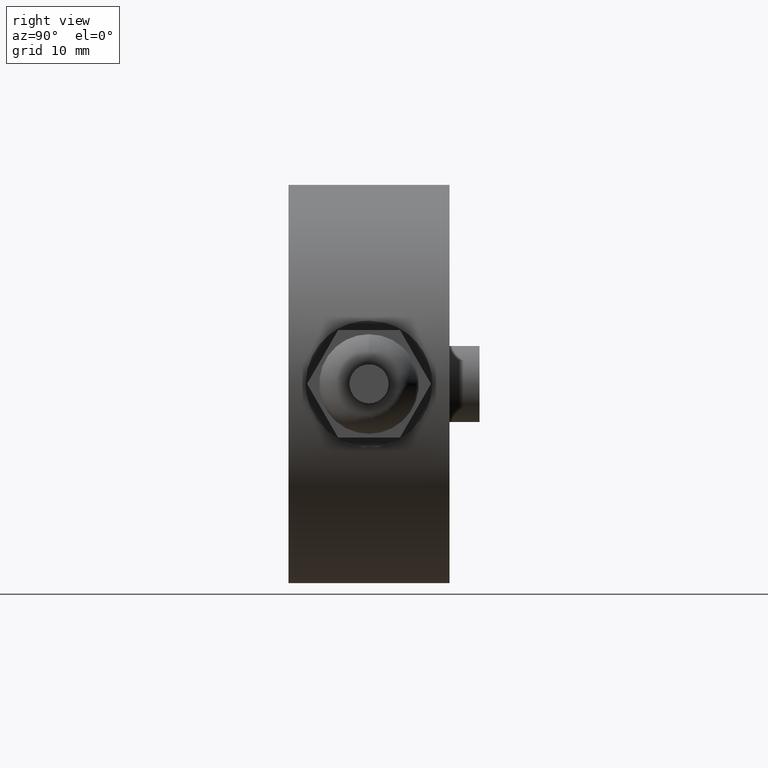
[diagram: clean part render]
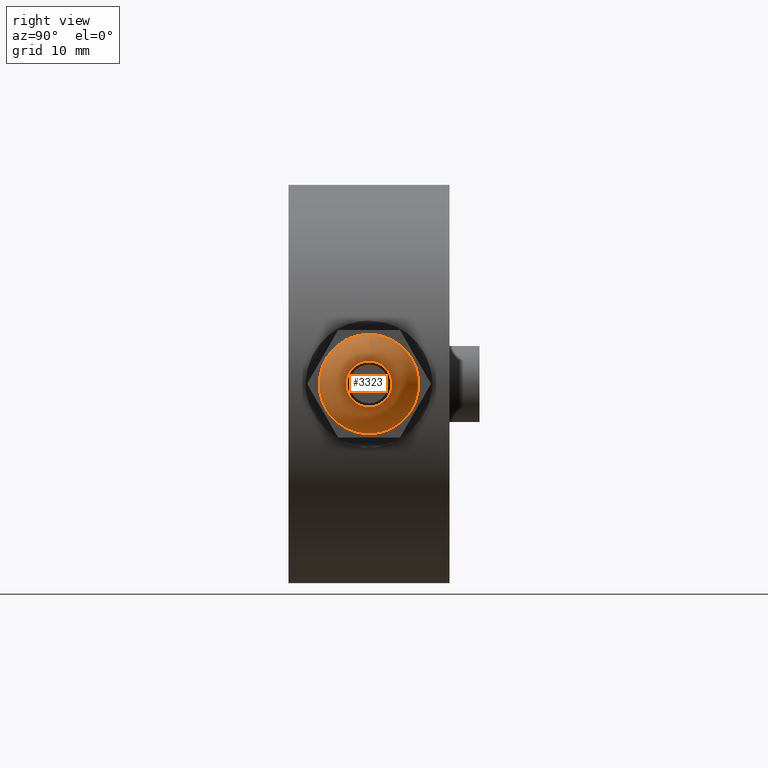
[diagram: same view with one face highlighted and labeled with its STEP entity id]
A machine part, right view. The second image highlights one B-rep face of the part: STEP entity #3323.
In plain terms, the highlighted face is a freeform B-spline surface patch.
Its self-contained STEP definition (entity closure, byte-faithful):
#324=(
BOUNDED_SURFACE()
B_SPLINE_SURFACE(2,2,((#4523,#4524,#4525,#4526,#4527,#4528,#4529,#4530,
#4531),(#4532,#4533,#4534,#4535,#4536,#4537,#4538,#4539,#4540),(#4541,#4542,
#4543,#4544,#4545,#4546,#4547,#4548,#4549)),.UNSPECIFIED.,.F.,.T.,.F.)
B_SPLINE_SURFACE_WITH_KNOTS((3,3),(3,2,2,2,3),(0.,1.5707963267949),(-3.14159265358979,
-1.5707963267949,0.,1.5707963267949,3.14159265358979),.UNSPECIFIED.)
GEOMETRIC_REPRESENTATION_ITEM()
RATIONAL_B_SPLINE_SURFACE(((1.,0.707106781186548,1.,0.707106781186548,1.,
0.707106781186548,1.,0.707106781186548,1.),(0.707106781186547,0.499999999999999,
0.707106781186547,0.499999999999999,0.707106781186547,0.499999999999999,
0.707106781186547,0.499999999999999,0.707106781186547),(1.,0.707106781186548,
1.,0.707106781186548,1.,0.707106781186548,1.,0.707106781186548,1.)))
REPRESENTATION_ITEM('')
SURFACE()
);
#355=FACE_OUTER_BOUND('',#568,.T.);
#568=EDGE_LOOP('',(#2107,#2108,#2109,#2110));
#1203=CIRCLE('',#3556,3.);
#1204=CIRCLE('',#3557,3.5);
#1205=CIRCLE('',#3558,6.5);
#1248=VERTEX_POINT('',#4550);
#1249=VERTEX_POINT('',#4552);
#1578=EDGE_CURVE('',#1248,#1248,#1203,.T.);
#1579=EDGE_CURVE('',#1248,#1249,#1204,.T.);
#1580=EDGE_CURVE('',#1249,#1249,#1205,.T.);
#2107=ORIENTED_EDGE('',*,*,#1578,.T.);
#2108=ORIENTED_EDGE('',*,*,#1579,.T.);
#2109=ORIENTED_EDGE('',*,*,#1580,.T.);
#2110=ORIENTED_EDGE('',*,*,#1579,.F.);
#3323=ADVANCED_FACE('',(#355),#324,.F.);
#3556=AXIS2_PLACEMENT_3D('',#4551,#3820,#3821);
#3557=AXIS2_PLACEMENT_3D('',#4553,#3822,#3823);
#3558=AXIS2_PLACEMENT_3D('',#4554,#3824,#3825);
#3820=DIRECTION('center_axis',(-1.,0.,0.));
#3821=DIRECTION('ref_axis',(0.,0.,-1.));
#3822=DIRECTION('center_axis',(0.,-1.,-1.22464679914735E-16));
#3823=DIRECTION('ref_axis',(0.,-1.22464679914735E-16,1.));
#3824=DIRECTION('center_axis',(1.,0.,0.));
#3825=DIRECTION('ref_axis',(0.,0.,-1.));
#4523=CARTESIAN_POINT('Ctrl Pts',(12.5,0.,6.5));
#4524=CARTESIAN_POINT('Ctrl Pts',(12.5,-6.5,6.5));
#4525=CARTESIAN_POINT('Ctrl Pts',(12.5,-6.5,0.));
#4526=CARTESIAN_POINT('Ctrl Pts',(12.5,-6.5,-6.5));
#4527=CARTESIAN_POINT('Ctrl Pts',(12.5,0.,-6.5));
#4528=CARTESIAN_POINT('Ctrl Pts',(12.5,6.5,-6.5));
#4529=CARTESIAN_POINT('Ctrl Pts',(12.5,6.5,0.));
#4530=CARTESIAN_POINT('Ctrl Pts',(12.5,6.5,6.5));
#4531=CARTESIAN_POINT('Ctrl Pts',(12.5,0.,6.5));
#4532=CARTESIAN_POINT('Ctrl Pts',(16.,0.,6.5));
#4533=CARTESIAN_POINT('Ctrl Pts',(16.,-6.5,6.5));
#4534=CARTESIAN_POINT('Ctrl Pts',(16.,-6.5,0.));
#4535=CARTESIAN_POINT('Ctrl Pts',(16.,-6.5,-6.5));
#4536=CARTESIAN_POINT('Ctrl Pts',(16.,0.,-6.5));
#4537=CARTESIAN_POINT('Ctrl Pts',(16.,6.5,-6.5));
#4538=CARTESIAN_POINT('Ctrl Pts',(16.,6.5,0.));
#4539=CARTESIAN_POINT('Ctrl Pts',(16.,6.5,6.5));
#4540=CARTESIAN_POINT('Ctrl Pts',(16.,0.,6.5));
#4541=CARTESIAN_POINT('Ctrl Pts',(16.,0.,3.));
#4542=CARTESIAN_POINT('Ctrl Pts',(16.,-3.,3.));
#4543=CARTESIAN_POINT('Ctrl Pts',(16.,-3.,0.));
#4544=CARTESIAN_POINT('Ctrl Pts',(16.,-3.,-3.));
#4545=CARTESIAN_POINT('Ctrl Pts',(16.,0.,-3.));
#4546=CARTESIAN_POINT('Ctrl Pts',(16.,3.,-3.));
#4547=CARTESIAN_POINT('Ctrl Pts',(16.,3.,0.));
#4548=CARTESIAN_POINT('Ctrl Pts',(16.,3.,3.));
#4549=CARTESIAN_POINT('Ctrl Pts',(16.,0.,3.));
#4550=CARTESIAN_POINT('',(16.,3.67394039744206E-16,3.));
#4551=CARTESIAN_POINT('Origin',(16.,0.,0.));
#4552=CARTESIAN_POINT('',(12.5,-7.9602041944578E-16,6.5));
#4553=CARTESIAN_POINT('Origin',(12.5,-3.67394039744206E-16,3.));
#4554=CARTESIAN_POINT('Origin',(12.5,0.,0.));